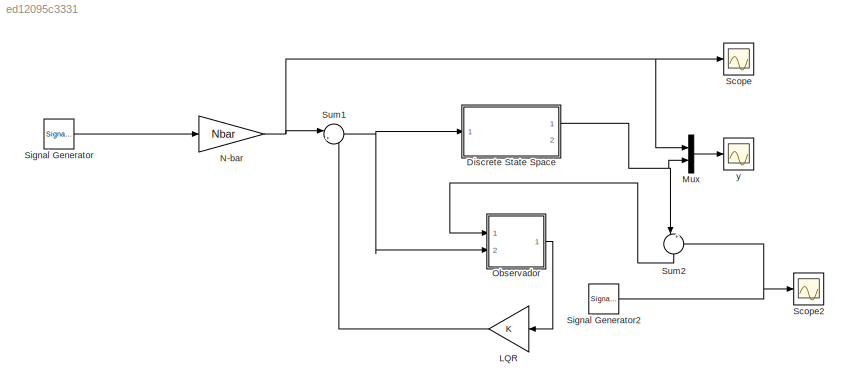
MODEL slx_ed12095c3331
KIND model
CONFIG AbsTol = auto
CONFIG EnableMultiTasking = on
CONFIG FixedStep = 0.02
CONFIG MaxStep = auto
CONFIG MinStep = auto
CONFIG RelTol = 1e-3
CONFIG SampleTimeConstraint = Unconstrained
CONFIG Solver = FixedStepDiscrete
CONFIG SolverName = FixedStepDiscrete
CONFIG StartTime = 0.0
CONFIG StopTime = 10
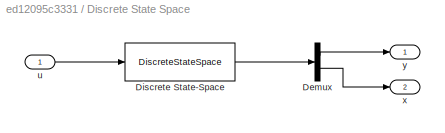
BLOCK [SubSystem] Discrete State Space 
  Ports = [1, 2]
  RequestExecContextInheritance = off
BLOCK [Demux] Discrete State Space /Demux
  DisplayOption = bar
  Outputs = [1 length(A)]
  Ports = [1, 2]
BLOCK [DiscreteStateSpace] Discrete State Space /Discrete State-Space
  A = A
  B = B
  C = [C;eye(4)]
  D = [0;0;0;0;0]
  SampleTime = 0.02
BLOCK [Inport] Discrete State Space /u
  IconDisplay = Port number
BLOCK [Outport] Discrete State Space /x
  IconDisplay = Port number
  Port = 2
BLOCK [Outport] Discrete State Space /y
  IconDisplay = Port number
BLOCK [Gain] LQR
  Gain = K
  Multiplication = Matrix(K*u)
  OutDataTypeStr = Inherit: Inherit via internal rule
  ParamDataTypeStr = Inherit: Inherit via internal rule
  SaturateOnIntegerOverflow = off
BLOCK [Mux] Mux
  DisplayOption = bar
  Inputs = 2
  Ports = [2, 1]
BLOCK [Gain] N-bar
  Gain = Nbar
  Multiplication = Matrix(K*u)
  OutDataTypeStr = Inherit: Inherit via internal rule
  ParamDataTypeStr = Inherit: Inherit via internal rule
  SaturateOnIntegerOverflow = off
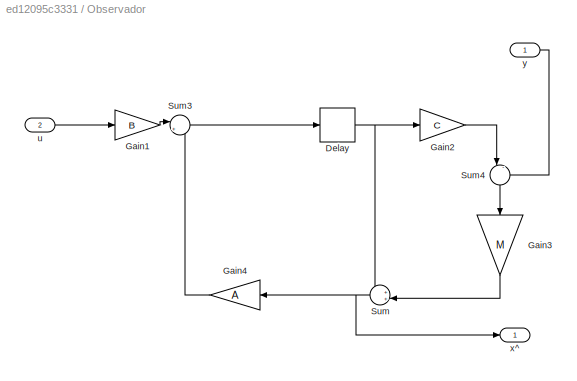
BLOCK [SubSystem] Observador
  Ports = [2, 1]
  RequestExecContextInheritance = off
BLOCK [Delay] Observador/Delay
  DelayLength = 1
  InitialCondition = 0
  InputPortMap = u0
  Ports = [1, 1]
BLOCK [Gain] Observador/Gain1
  Gain = B
  Multiplication = Matrix(K*u)
  OutDataTypeStr = Inherit: Inherit via internal rule
  ParamDataTypeStr = Inherit: Inherit via internal rule
  SaturateOnIntegerOverflow = off
BLOCK [Gain] Observador/Gain2
  Gain = C
  Multiplication = Matrix(K*u)
  OutDataTypeStr = Inherit: Inherit via internal rule
  ParamDataTypeStr = Inherit: Inherit via internal rule
  SaturateOnIntegerOverflow = off
BLOCK [Gain] Observador/Gain3
  Gain = M
  Multiplication = Matrix(K*u)
  OutDataTypeStr = Inherit: Inherit via internal rule
  ParamDataTypeStr = Inherit: Inherit via internal rule
  SaturateOnIntegerOverflow = off
BLOCK [Gain] Observador/Gain4
  Gain = A
  Multiplication = Matrix(K*u)
  OutDataTypeStr = Inherit: Inherit via internal rule
  ParamDataTypeStr = Inherit: Inherit via internal rule
  SaturateOnIntegerOverflow = off
BLOCK [Sum] Observador/Sum
  IconShape = round
  InputSameDT = off
  Inputs = ++|
  OutDataTypeStr = Inherit: Inherit via internal rule
  Ports = [2, 1]
  SaturateOnIntegerOverflow = off
BLOCK [Sum] Observador/Sum3
  IconShape = round
  InputSameDT = off
  Inputs = |++
  OutDataTypeStr = Inherit: Inherit via internal rule
  Ports = [2, 1]
  SaturateOnIntegerOverflow = off
BLOCK [Sum] Observador/Sum4
  IconShape = round
  InputSameDT = off
  Inputs = |-+
  OutDataTypeStr = Inherit: Inherit via internal rule
  Ports = [2, 1]
  SaturateOnIntegerOverflow = off
BLOCK [Inport] Observador/u
  IconDisplay = Port number
  Port = 2
BLOCK [Outport] Observador/x^
  IconDisplay = Port number
BLOCK [Inport] Observador/y
  IconDisplay = Port number
BLOCK [Scope] Scope
  Floating = off
  NumInputPorts = 1
  Ports = [1]
  ScopeSpecificationString = Simulink.scopes.TimeScopeBlockCfg('CurrentConfiguration', extmgr.ConfigurationSet(extmgr.Configuration('Core','General UI',true),extmgr.Configuration('Core','Source UI',true),extmgr.Configuration('Sources','WiredSimulink',true),extmgr.Configuration('Visuals','Time Domain',true,'SerializedDisplays',{struct('MinYLimReal','-79.91622','MaxYLimReal','79.91622','YLabelReal','','MinYLimMag','0.00000','Ma...<+1385ch>
BLOCK [Scope] Scope2
  Floating = off
  NumInputPorts = 1
  Ports = [1]
  ScopeSpecificationString = Simulink.scopes.TimeScopeBlockCfg('CurrentConfiguration', extmgr.ConfigurationSet(extmgr.Configuration('Core','General UI',true),extmgr.Configuration('Core','Source UI',true),extmgr.Configuration('Sources','WiredSimulink',true,'DataLoggingVariableName','ScopeData3'),extmgr.Configuration('Visuals','Time Domain',true,'SerializedDisplays',{struct('MinYLimReal','-12.5','MaxYLimReal','12.5','YLabelReal...<+1431ch>
BLOCK [SignalGenerator] Signal Generator
  Amplitude = 90
  Frequency = 2
  Ports = [0, 1]
  WaveForm = square
BLOCK [SignalGenerator] Signal Generator2
  Amplitude = 10
  Frequency = 1000
  Ports = [0, 1]
  Units = rad/sec
  WaveForm = square
BLOCK [Sum] Sum1
  IconShape = round
  InputSameDT = off
  Inputs = |+-
  OutDataTypeStr = Inherit: Inherit via internal rule
  Ports = [2, 1]
  SaturateOnIntegerOverflow = off
BLOCK [Sum] Sum2
  IconShape = round
  InputSameDT = off
  Inputs = |++
  OutDataTypeStr = Inherit: Inherit via internal rule
  Ports = [2, 1]
  SaturateOnIntegerOverflow = off
BLOCK [Scope] y
  Floating = off
  NumInputPorts = 1
  Ports = [1]
  ScopeSpecificationString = Simulink.scopes.TimeScopeBlockCfg('CurrentConfiguration', extmgr.ConfigurationSet(extmgr.Configuration('Core','General UI',true),extmgr.Configuration('Core','Source UI',true),extmgr.Configuration('Sources','WiredSimulink',true,'DataLoggingVariableName','ScopeData1','DataLoggingLimitDataPoints',true,'DataLoggingSaveFormat','Array','DataLoggingDecimation','1','DataLoggingDecimateData',true),extmgr.C...<+1797ch>
LINE Discrete State Space /Demux:1 -> Discrete State Space /y:1
LINE Discrete State Space /Demux:2 -> Discrete State Space /x:1
LINE Discrete State Space /Discrete State-Space:1 -> Discrete State Space /Demux:1
LINE Discrete State Space /u:1 -> Discrete State Space /Discrete State-Space:1
NET Discrete State Space :1 -> Mux:2, Sum2:1
LINE LQR:1 -> Sum1:2
LINE Mux:1 -> y:1
NET N-bar:1 -> Mux:1, Scope:1, Sum1:1
NET Observador/Delay:1 -> Observador/Gain2:1, Observador/Sum:1
LINE Observador/Gain1:1 -> Observador/Sum3:1
LINE Observador/Gain2:1 -> Observador/Sum4:1
LINE Observador/Gain3:1 -> Observador/Sum:2
LINE Observador/Gain4:1 -> Observador/Sum3:2
LINE Observador/Sum3:1 -> Observador/Delay:1
LINE Observador/Sum4:1 -> Observador/Gain3:1
NET Observador/Sum:1 -> Observador/Gain4:1, Observador/x^:1
LINE Observador/u:1 -> Observador/Gain1:1
LINE Observador/y:1 -> Observador/Sum4:2
LINE Observador:1 -> LQR:1
NET Signal Generator2:1 -> Scope2:1, Sum2:2
LINE Signal Generator:1 -> N-bar:1
NET Sum1:1 -> Discrete State Space :1, Observador:2
LINE Sum2:1 -> Observador:1
note: NET lines group one-source signal fan-out (src -> all destinations, sorted); 1:1 wires keep LINE
